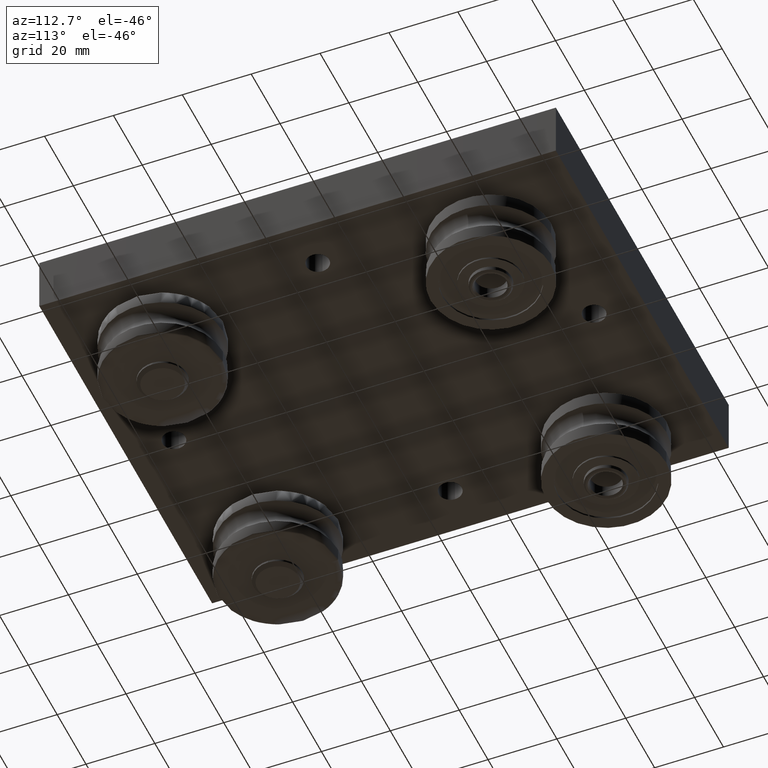
[diagram: clean part render]
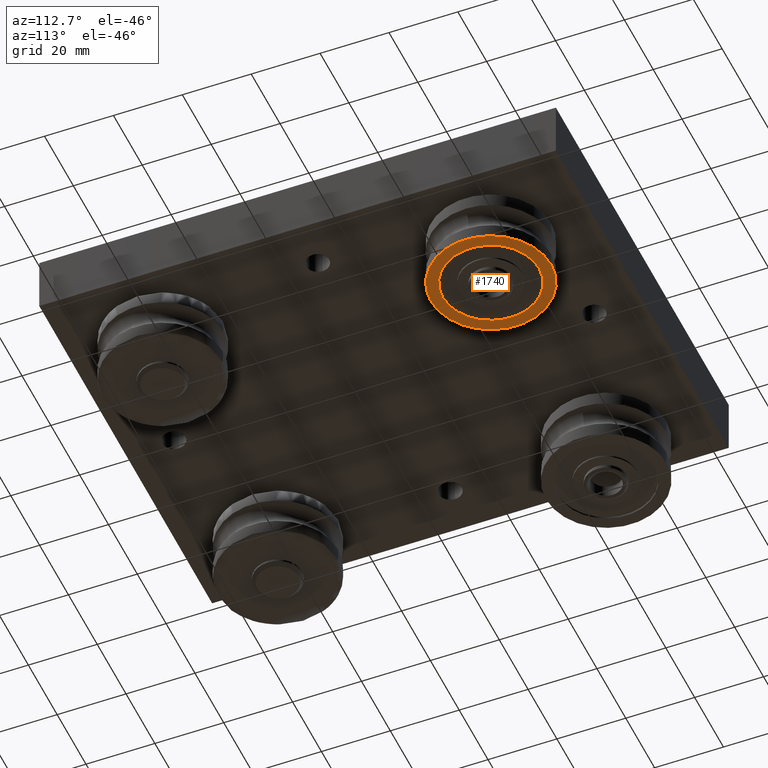
[diagram: same view with one face highlighted and labeled with its STEP entity id]
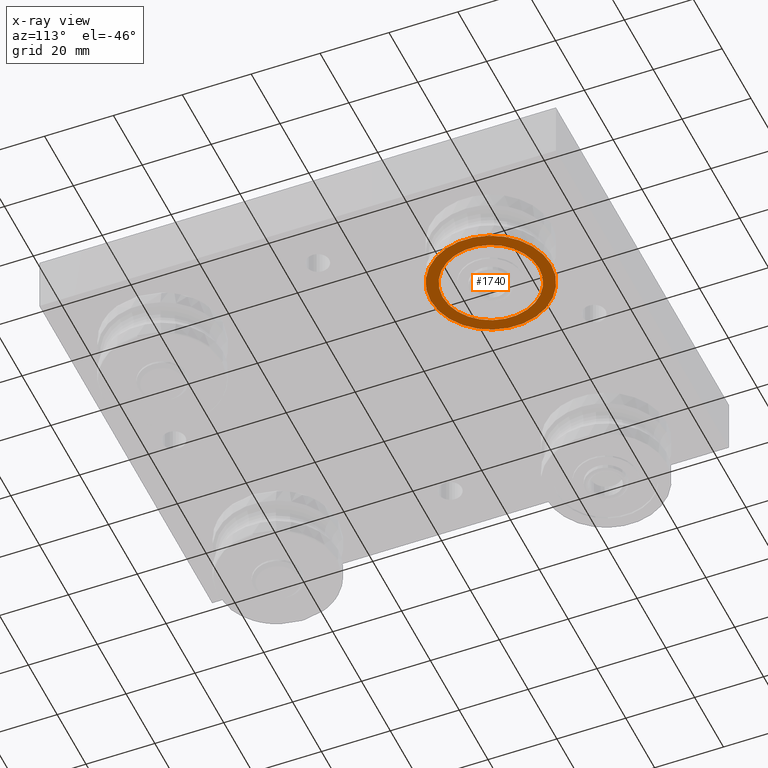
[diagram: x-ray of the same camera — body ghosted, the highlighted face saturated]
A machine part, auxiliary view. The second image highlights one B-rep face of the part: STEP entity #1740.
The next image is the same camera in x-ray: the body ghosted, the highlighted face saturated — about 0% of this face is hidden behind the body in this view.
In plain terms, the highlighted planar face has unit normal (0, 0, -1).
Its self-contained STEP definition (entity closure, byte-faithful):
#184=FACE_BOUND('',#415,.T.);
#211=PLANE('',#1993);
#278=FACE_OUTER_BOUND('',#414,.T.);
#414=EDGE_LOOP('',(#1319));
#415=EDGE_LOOP('',(#1320));
#739=CIRCLE('',#1992,14.);
#740=CIRCLE('',#1994,17.5);
#863=VERTEX_POINT('',#2885);
#864=VERTEX_POINT('',#2889);
#1029=EDGE_CURVE('',#863,#863,#739,.T.);
#1030=EDGE_CURVE('',#864,#864,#740,.T.);
#1319=ORIENTED_EDGE('',*,*,#1030,.F.);
#1320=ORIENTED_EDGE('',*,*,#1029,.T.);
#1740=ADVANCED_FACE('',(#278,#184),#211,.T.);
#1992=AXIS2_PLACEMENT_3D('',#2887,#2321,#2322);
#1993=AXIS2_PLACEMENT_3D('',#2888,#2323,#2324);
#1994=AXIS2_PLACEMENT_3D('',#2890,#2325,#2326);
#2321=DIRECTION('center_axis',(1.,0.,0.));
#2322=DIRECTION('ref_axis',(0.,1.,0.));
#2323=DIRECTION('center_axis',(-1.,0.,0.));
#2324=DIRECTION('ref_axis',(0.,0.,1.));
#2325=DIRECTION('center_axis',(1.,0.,0.));
#2326=DIRECTION('ref_axis',(0.,1.,0.));
#2885=CARTESIAN_POINT('',(-7.95,-14.,-1.71450551880629E-15));
#2887=CARTESIAN_POINT('Origin',(-7.95,0.,0.));
#2888=CARTESIAN_POINT('Origin',(-7.95,15.75,0.));
#2889=CARTESIAN_POINT('',(-7.95,-17.5,-2.14313189850787E-15));
#2890=CARTESIAN_POINT('Origin',(-7.95,0.,0.));